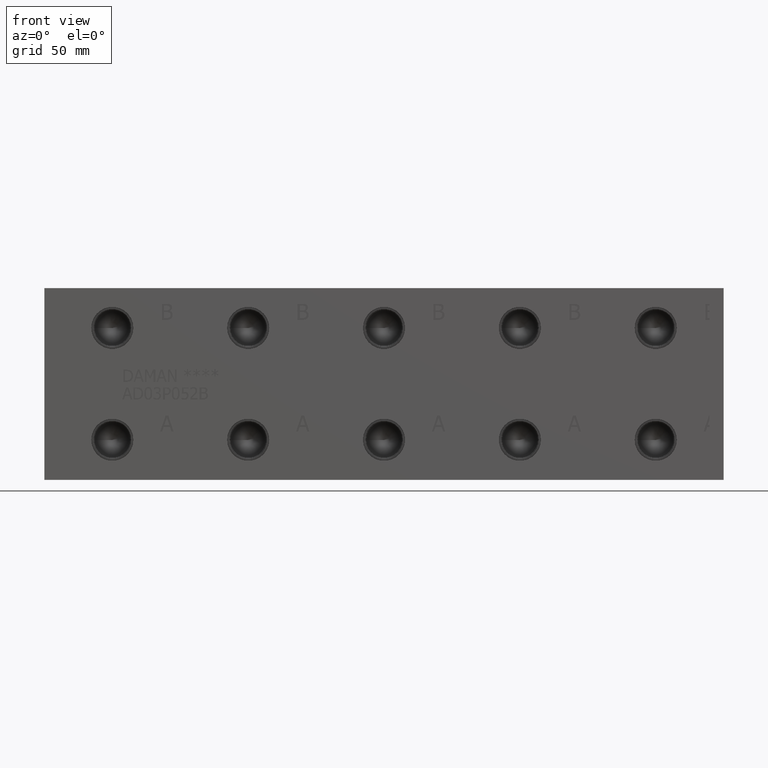
[diagram: clean part render]
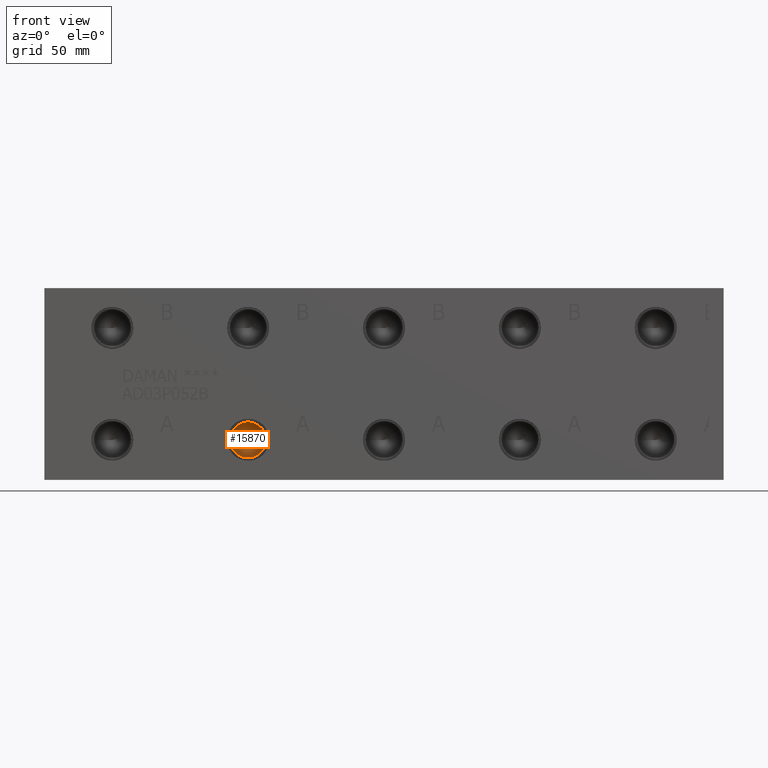
[diagram: same view with one face highlighted and labeled with its STEP entity id]
A machine part, front view. The second image highlights one B-rep face of the part: STEP entity #15870.
In plain terms, the highlighted conical surface has half-angle 60 deg.
Its self-contained STEP definition (entity closure, byte-faithful):
#165=CONICAL_SURFACE('',#16736,3.57505,1.0471975511966);
#433=CIRCLE('',#16737,7.1501);
#434=CIRCLE('',#16738,7.1501);
#1979=FACE_OUTER_BOUND('',#2916,.T.);
#2916=EDGE_LOOP('',(#13624,#13625,#13626,#13627));
#4366=LINE('',#26987,#5723);
#5723=VECTOR('',#19778,3.57505);
#7483=VERTEX_POINT('',#26983);
#7484=VERTEX_POINT('',#26984);
#7485=VERTEX_POINT('',#26986);
#9624=EDGE_CURVE('',#7483,#7484,#433,.T.);
#9625=EDGE_CURVE('',#7484,#7485,#4366,.T.);
#9626=EDGE_CURVE('',#7484,#7483,#434,.T.);
#13624=ORIENTED_EDGE('',*,*,#9624,.T.);
#13625=ORIENTED_EDGE('',*,*,#9625,.T.);
#13626=ORIENTED_EDGE('',*,*,#9625,.F.);
#13627=ORIENTED_EDGE('',*,*,#9626,.T.);
#15870=ADVANCED_FACE('',(#1979),#165,.F.);
#16736=AXIS2_PLACEMENT_3D('',#26982,#19774,#19775);
#16737=AXIS2_PLACEMENT_3D('',#26985,#19776,#19777);
#16738=AXIS2_PLACEMENT_3D('',#26988,#19779,#19780);
#19774=DIRECTION('center_axis',(0.,-1.,0.));
#19775=DIRECTION('ref_axis',(1.,0.,0.));
#19776=DIRECTION('center_axis',(0.,-1.,0.));
#19777=DIRECTION('ref_axis',(1.,0.,0.));
#19778=DIRECTION('',(0.866025403784439,0.5,1.06057523872491E-16));
#19779=DIRECTION('center_axis',(0.,-1.,0.));
#19780=DIRECTION('ref_axis',(1.,0.,0.));
#26982=CARTESIAN_POINT('Origin',(80.9498,22.2824560798664,15.875));
#26983=CARTESIAN_POINT('',(88.0999,20.2184,15.875));
#26984=CARTESIAN_POINT('',(73.7997,20.2184,15.875));
#26985=CARTESIAN_POINT('Origin',(80.9498,20.2184,15.875));
#26986=CARTESIAN_POINT('',(80.9498,24.3465121597327,15.875));
#26987=CARTESIAN_POINT('',(77.37475,22.2824560798664,15.875));
#26988=CARTESIAN_POINT('Origin',(80.9498,20.2184,15.875));